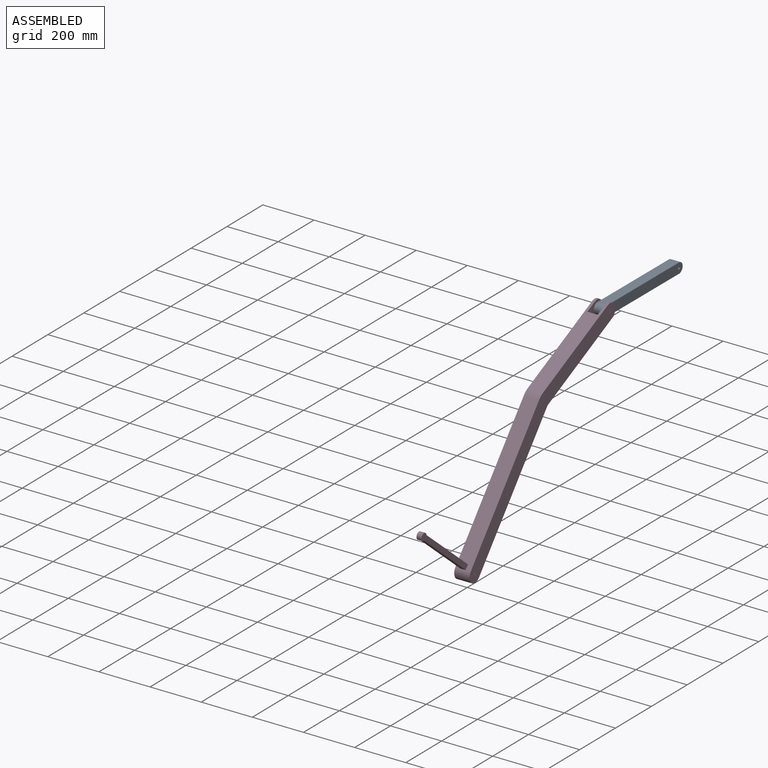
[diagram: assembled view]
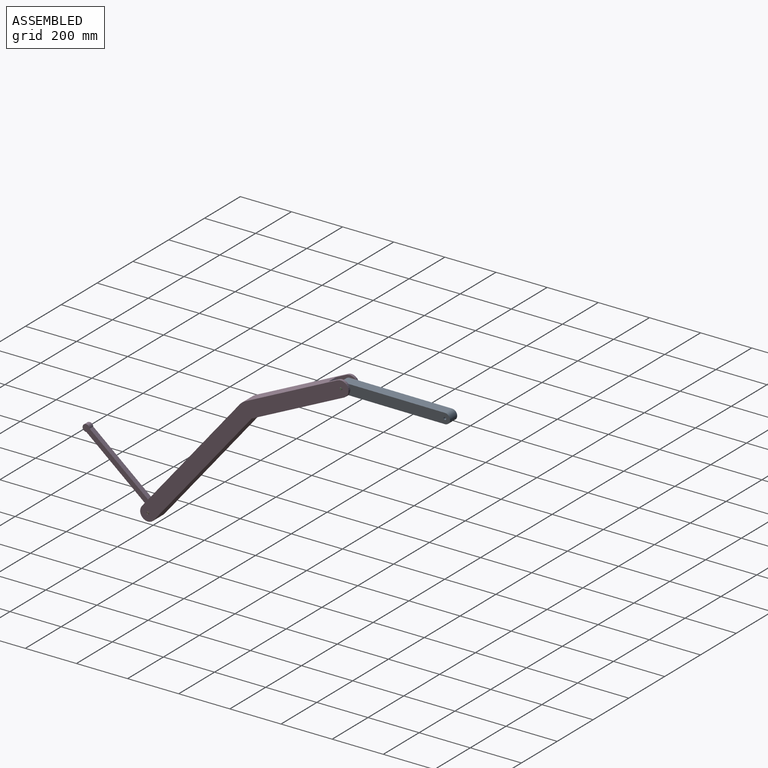
[diagram: assembled view, second angle]
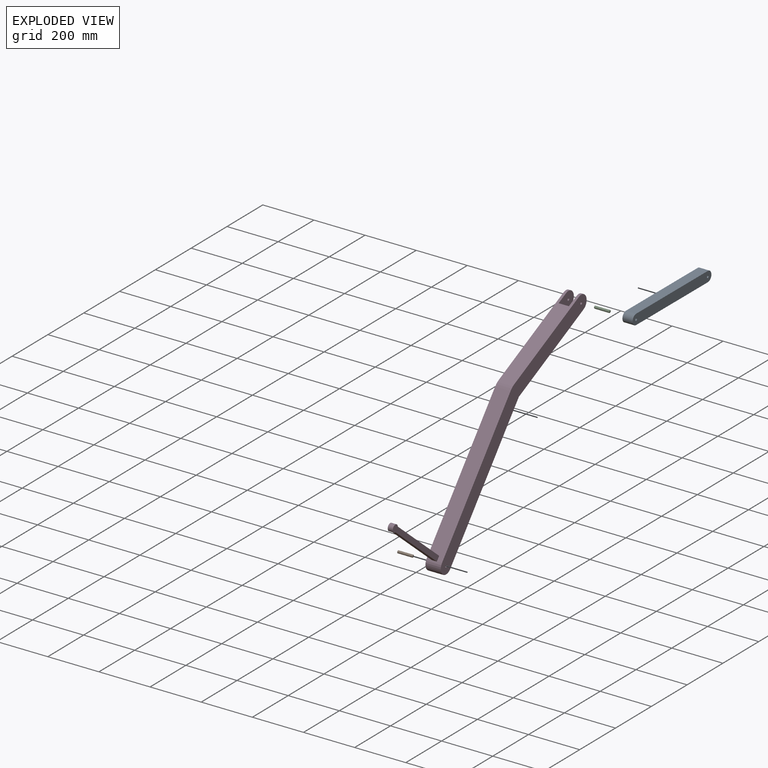
[diagram: exploded view]
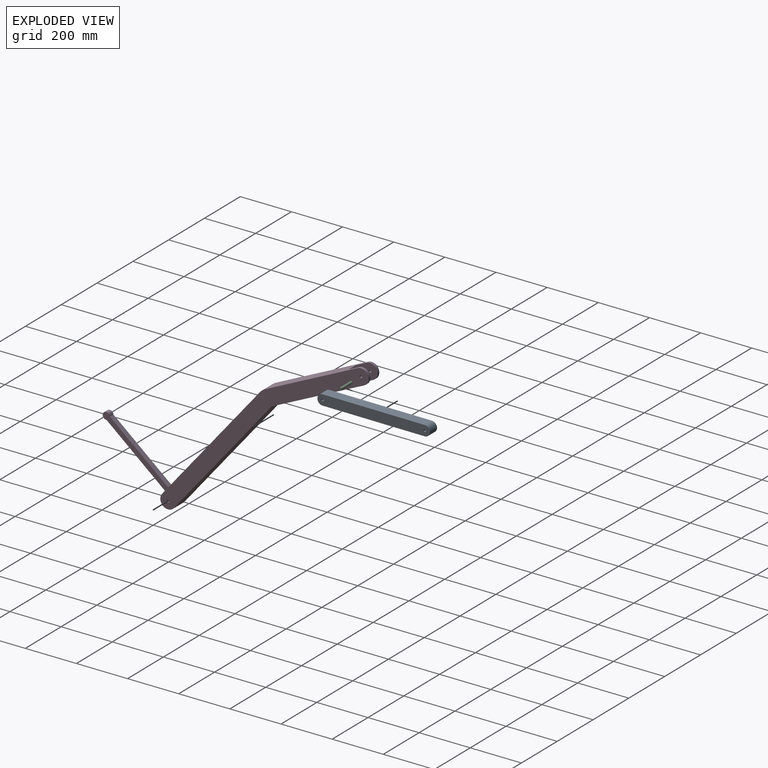
[diagram: exploded view, second angle]
ASSEMBLY  parts=4 mates=3
PART A: 8 faces, bbox 40x440x40 mm
  f0: plane 400x40mm, normal (0,0,1), area 16000mm2, adj f1,f4,f6,f7
  f1: cylinder r=20mm len=40mm, axis (-1,0,0), area 2513.3mm2, adj f0,f2,f6,f7
  f2: plane 400x40mm, normal (0,0,-1), area 16000mm2, adj f1,f4,f6,f7
  f3: cylinder r=5mm len=40mm, axis (-1,0,0), area 1256.6mm2, adj f6,f7
  f4: cylinder r=20mm len=40mm, axis (-1,0,0), area 2513.3mm2, adj f0,f2,f6,f7
  f5: cylinder r=5mm len=40mm, axis (-1,0,0), area 1256.6mm2, adj f6,f7
  f6: plane 440x40mm, normal (1,0,0), area 17099.6mm2, adj f0,f1,f2,f3,f4,f5
  f7: plane 440x40mm, normal (-1,0,0), area 17099.6mm2, adj f0,f1,f2,f3,f4,f5
PART B: 5 faces, bbox 60x10x10 mm
  f0: cylinder r=5mm len=58mm, axis (-1,0,0), area 1822.1mm2, adj f3,f4
  f1: plane 8x8mm, normal (1,0,0), area 50.3mm2, adj f3
  f2: plane 8x8mm, normal (-1,0,0), area 50.3mm2, adj f4
  f3: cone r=4mm half-angle=45deg, axis (-1,0,0), area 40mm2, adj f0,f1
  f4: cone r=5mm half-angle=45deg, axis (1,0,0), area 40mm2, adj f0,f2
PART C: same geometry as B
PART D: 21 faces, bbox 60x1056.4x696.6 mm
  f0: plane 459.63x385.67mm, normal (0,-0.77,0.64), area 35600mm2, adj f3,f10,f11,f12,f17,f19,f20
  f1: cylinder r=30mm len=57.19mm, axis (-1,0,0), area 942.5mm2, adj f5,f7,f12,f14
  f2: cylinder r=5mm len=10mm, axis (-1,0,0), area 314.2mm2, adj f12,f14
  f3: cylinder r=30mm len=60mm, axis (-1,0,0), area 5654.9mm2, adj f0,f4,f11,f12,f16
  f4: plane 459.63x385.67mm, normal (0,0.77,-0.64), area 36000mm2, adj f3,f5,f11,f12
  f5: plane 362.52x169.05mm, normal (0,0.42,-0.91), area 22140mm2, adj f1,f4,f6,f11,f12,f13,f14,f15
  f6: cylinder r=30mm len=57.19mm, axis (-1,0,0), area 942.5mm2, adj f5,f7,f11,f13
  f7: plane 362.52x169.05mm, normal (0,-0.42,0.91), area 22140mm2, adj f1,f6,f10,f11,f12,f13,f14,f15
  f8: cylinder r=5mm len=60mm, axis (-1,0,0), area 1885mm2, adj f11,f12
  f9: cylinder r=5mm len=10mm, axis (-1,0,0), area 314.2mm2, adj f11,f13
  f10: cylinder r=60mm len=60mm, axis (-1,0,0), area 1570.8mm2, adj f0,f7,f11,f12
  f11: plane 818.5x696.58mm, normal (1,0,0), area 63455.8mm2, adj f0,f3,f4,f5,f6,f7,f8,f9
  f12: plane 818.5x696.58mm, normal (-1,0,0), area 63455.8mm2, adj f0,f1,f2,f3,f4,f5,f7,f8
  f13: plane 84.82x76.84mm, normal (-1,0,0), area 4125.2mm2, adj f5,f6,f7,f9,f15
  f14: plane 84.82x76.84mm, normal (1,0,0), area 4125.2mm2, adj f1,f2,f5,f7,f15
  f15: plane 54.38x40mm, normal (0,0.91,0.42), area 2400mm2, adj f5,f7,f13,f14
  f16: plane 229.81x192.84mm, normal (0,-0.64,-0.77), area 6000mm2, adj f3,f18,f19,f20
  f17: plane 229.81x192.84mm, normal (0,0.64,0.77), area 6000mm2, adj f0,f18,f19,f20
  f18: cylinder r=14mm len=28mm, axis (-1,0,0), area 1313.8mm2, adj f16,f17,f19,f20
  f19: plane 257.75x220.79mm, normal (1,0,0), area 6557.8mm2, adj f0,f16,f17,f18
  f20: plane 257.75x220.79mm, normal (-1,0,0), area 6557.8mm2, adj f0,f16,f17,f18
PLACE A rot(axis=(-1,0,0),0.2deg) t=(0,-6.34,7.54)mm
PLACE B at identity fixed
PLACE C rot(axis=(1,0,0),0.3deg) t=(0,754.82,640.94)mm
PLACE D rot(axis=(1,0,0),0.3deg) t=(0,0,0)mm
MATE revolute B.f0 <-> D.f3  axis (-1,0,0) through (0,0,0)mm
MATE fastened C.f0 <-> D.f1  axis (1,0,0) through (30,754.82,640.94)mm
MATE revolute A.f1 <-> C.f0  axis (-1,0,0) through (0,754.82,640.94)mm
